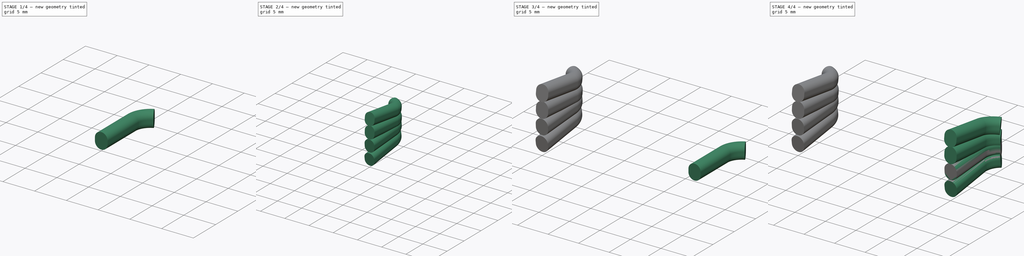
[diagram: build sequence overview — one tinted view per stage of 4, left to right]
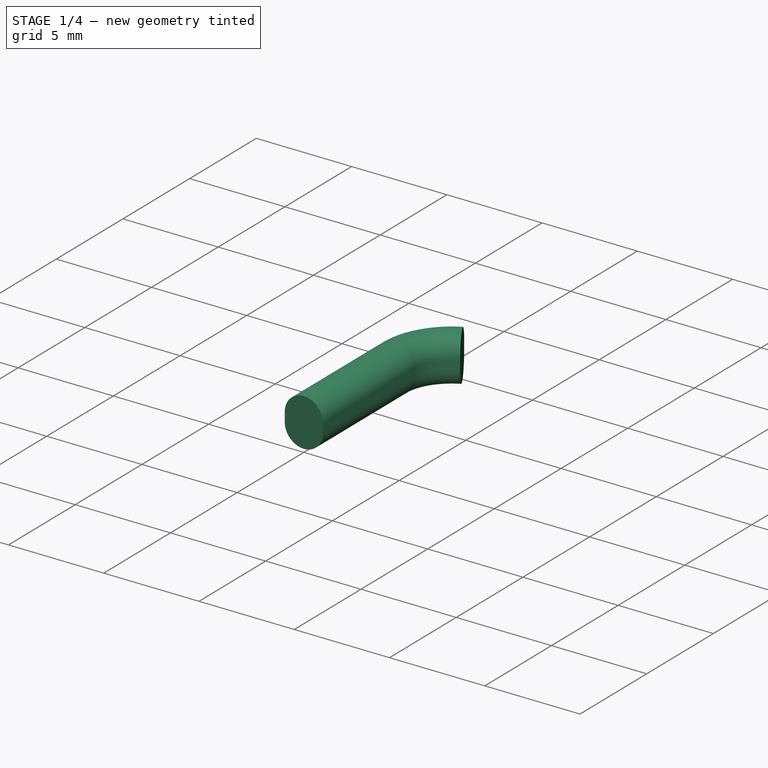
[diagram: stage 1 of 4 — iso view after this stage's code; geometry added in this stage tinted green]
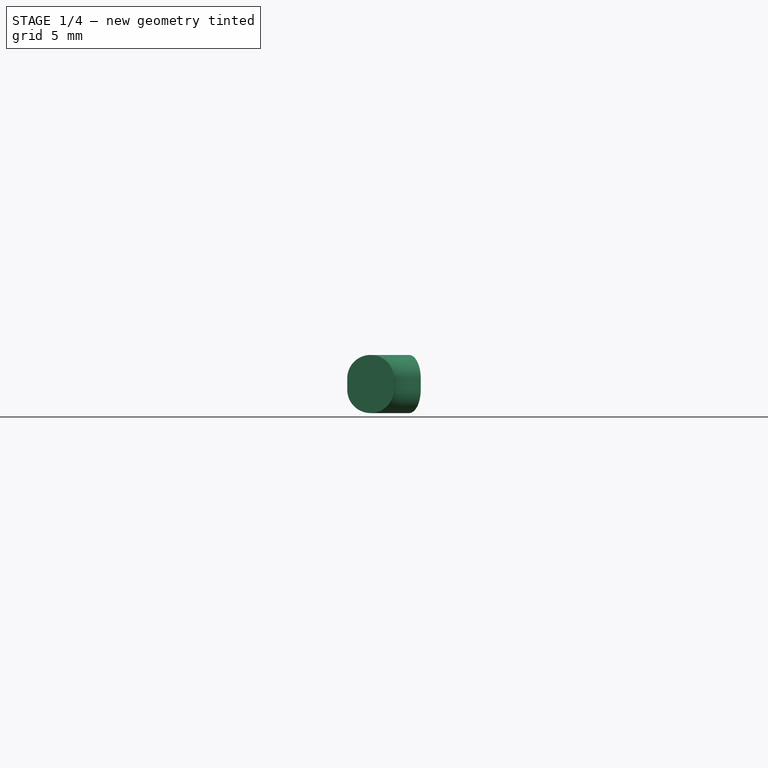
[diagram: stage 1 of 4 — front view after this stage's code; geometry added in this stage tinted green]
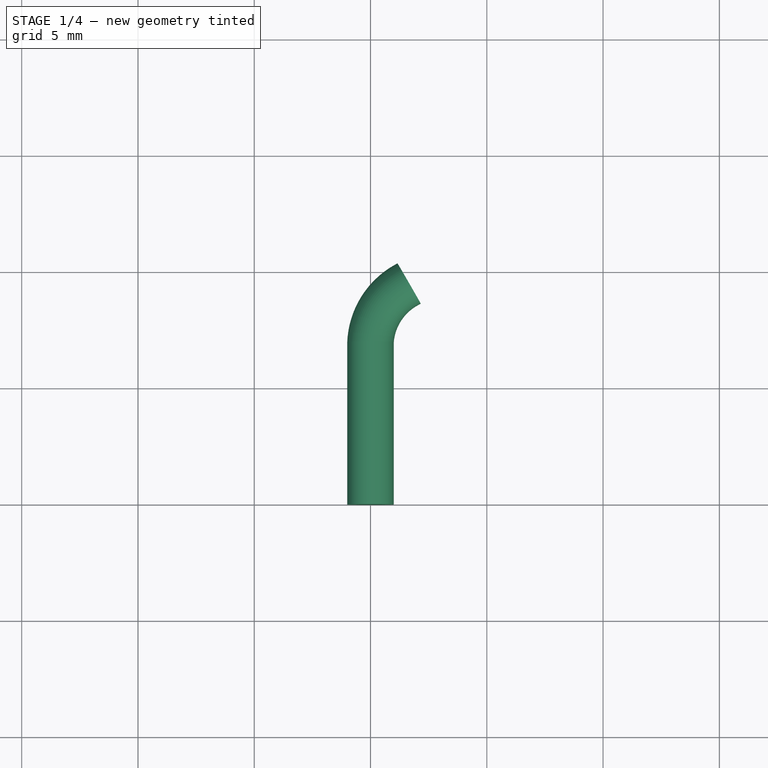
[diagram: stage 1 of 4 — top view after this stage's code; geometry added in this stage tinted green]
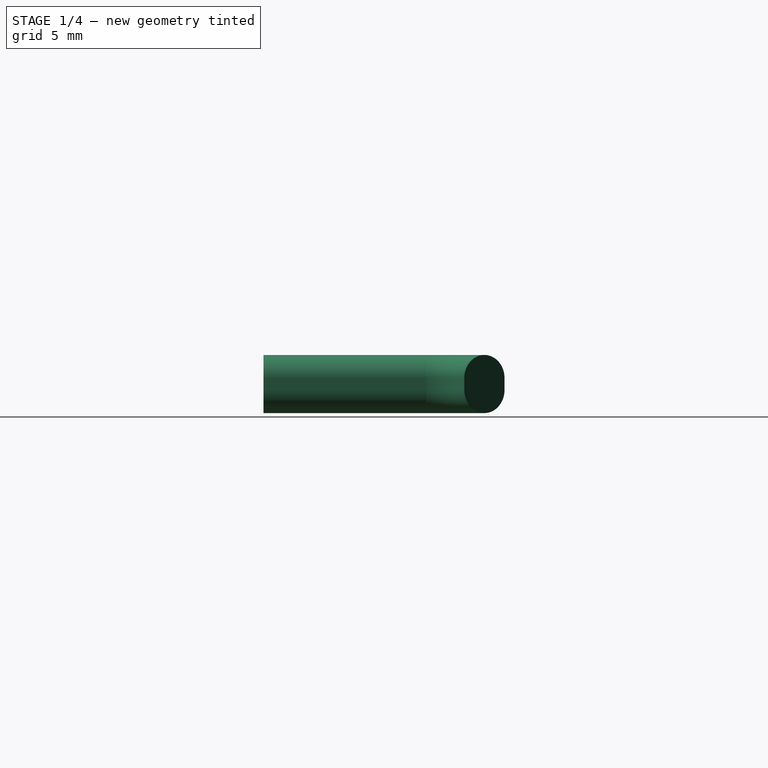
[diagram: stage 1 of 4 — right view after this stage's code; geometry added in this stage tinted green]
FCSTD DOCUMENT  (FreeCAD 0.19R24276 (Git))
Label: pipes
License: All rights reserved
LicenseURL: http://en.wikipedia.org/wiki/All_rights_reserved
objects: Sketcher::SketchObject×16, PartDesign::AdditivePipe×8, PartDesign::Body×8, Part::MultiFuse×2, Spreadsheet::Sheet×1
note: 42 computed .brp shape members not serialized (recipe doc carries the construction recipe); baked Part::Feature solids carry a one-line shape summary decoded from their .brp

FEATURE [PartDesign::Body] Body005
  Group = -> [Sketch008,Sketch010,AdditivePipe005]
  Origin = -> Origin004
  Placement = pos=(0,0,2.5) rot=(-1,0,0;0.069813rad)
  Tip = -> AdditivePipe005
  expr: .Placement.Rotation.Angle = -<<data>>.pipe_angle
FEATURE [Sketcher::SketchObject] Sketch013
  FullyConstrained = true
  Placement = pos=(0,0,0) rot=(1,0,0;1.5708rad)
  sketch-geometry (4):
    g0: ArcOfCircle CenterX=0 CenterY=0 CenterZ=0 NormalX=0 NormalY=0 NormalZ=1 AngleXU=0 Radius=1 StartAngle=-7.15e-13 EndAngle=3.14159
    g1: ArcOfCircle CenterX=5.09e-14 CenterY=-0.5 CenterZ=0 NormalX=0 NormalY=0 NormalZ=1 AngleXU=0 Radius=1 StartAngle=3.14159 EndAngle=6.28319
    g2: LineSegment StartX=-1 StartY=-4.83e-14 StartZ=0 EndX=-1 EndY=-0.5 EndZ=0
    g3: LineSegment StartX=1 StartY=-7.15e-13 StartZ=0 EndX=1 EndY=-0.5 EndZ=0
  constraints (9):
    c: Tangent(g0,g3) = 1.5708
    c: Tangent(g0,g2) = -1.5708
    c: Tangent(g2,g1) = -1.5708
    c: Tangent(g3,g1) = 1.5708
    c: Vertical(g2)
    c: Equal(g0,g1)
    c: Coincident(g0,g-1)
    c: Radius(g0) = 1
    c: DistanceY(g1,g0) = 0.5
FEATURE [PartDesign::AdditivePipe] AdditivePipe006
  AuxilleryCurvelinear = true
  AuxillerySpineTangent = false
  Binormal = (0,0,0)
  Mode = 0
  Placement = pos=(0,0,0) rot=(1,0,0;1.5708rad)
  Profile = -> Sketch013
  Spine = -> Sketch012 [Edge1,Edge2]
  SpineTangent = false
  Transformation = 0
  Transition = 0
FEATURE [PartDesign::Body] Body007
  Group = -> [Sketch012,Sketch013,AdditivePipe006]
  Origin = -> Origin005
  Placement = pos=(0,0,5) rot=(-1,0,0;0.139626rad)
  Tip = -> AdditivePipe006
  expr: .Placement.Rotation.Angle = -<<data>>.pipe_angle * 2
FEATURE [Sketcher::SketchObject] Sketch014
  FullyConstrained = true
  MapMode = 5
  Support = -> [XY_Plane006]
  sketch-geometry (2):
    g0: LineSegment StartX=0 StartY=0 StartZ=0 EndX=5.15e-14 EndY=7 EndZ=0
    g1: ArcOfCircle CenterX=2.99422 CenterY=6.81386 CenterZ=0 NormalX=0 NormalY=0 NormalZ=1 AngleXU=0 Radius=3 StartAngle=2.03231 EndAngle=3.07951
  constraints (7):
    c: Coincident(g0,g-1)
    c: PointOnObject(g0,g-2)
    c: DistanceY(g0,g0) = 7
    c: Radius(g1) = 3
    c: Angle(g1) = 1.0472
    c: Coincident(g0,g1)
    c: DistanceY(g0,g1) = 2.5
FEATURE [Sketcher::SketchObject] Sketch015
  FullyConstrained = true
  Placement = pos=(0,0,0) rot=(1,0,0;1.5708rad)
  sketch-geometry (4):
    g0: ArcOfCircle CenterX=0 CenterY=0 CenterZ=0 NormalX=0 NormalY=0 NormalZ=1 AngleXU=0 Radius=1 StartAngle=-7.15e-13 EndAngle=3.14159
    g1: ArcOfCircle CenterX=5.09e-14 CenterY=-0.5 CenterZ=0 NormalX=0 NormalY=0 NormalZ=1 AngleXU=0 Radius=1 StartAngle=3.14159 EndAngle=6.28319
    g2: LineSegment StartX=-1 StartY=-4.83e-14 StartZ=0 EndX=-1 EndY=-0.5 EndZ=0
    g3: LineSegment StartX=1 StartY=-7.15e-13 StartZ=0 EndX=1 EndY=-0.5 EndZ=0
  constraints (9):
    c: Tangent(g0,g3) = 1.5708
    c: Tangent(g0,g2) = -1.5708
    c: Tangent(g2,g1) = -1.5708
    c: Tangent(g3,g1) = 1.5708
    c: Vertical(g2)
    c: Equal(g0,g1)
    c: Coincident(g0,g-1)
    c: Radius(g0) = 1
    c: DistanceY(g1,g0) = 0.5
FEATURE [PartDesign::AdditivePipe] AdditivePipe007
  AuxilleryCurvelinear = true
  AuxillerySpineTangent = false
  Binormal = (0,0,0)
  Mode = 0
  Placement = pos=(0,0,0) rot=(1,0,0;1.5708rad)
  Profile = -> Sketch015
  Spine = -> Sketch014 [Edge1,Edge2]
  SpineTangent = false
  Transformation = 0
  Transition = 0
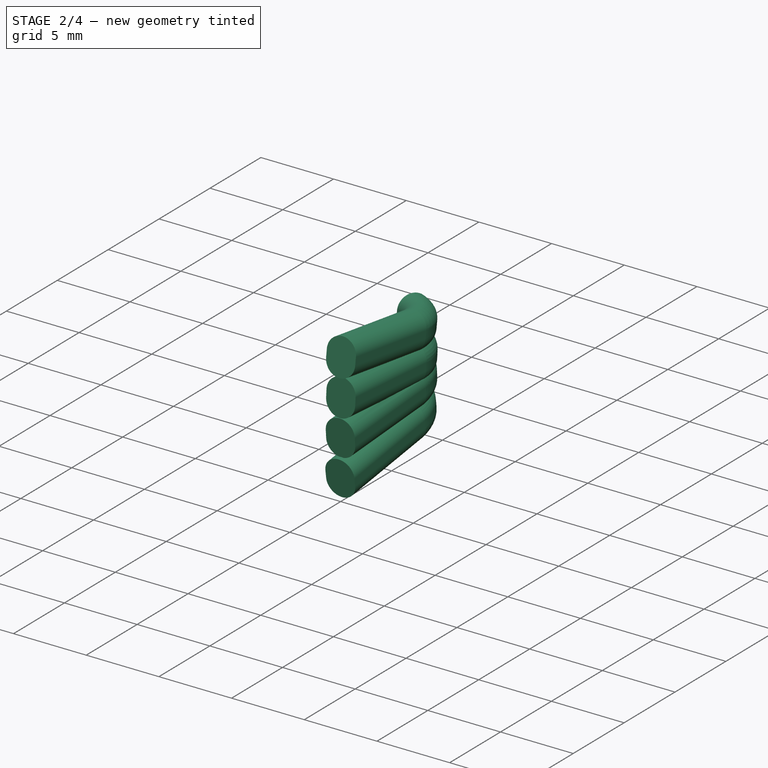
[diagram: stage 2 of 4 — iso view after this stage's code; geometry added in this stage tinted green]
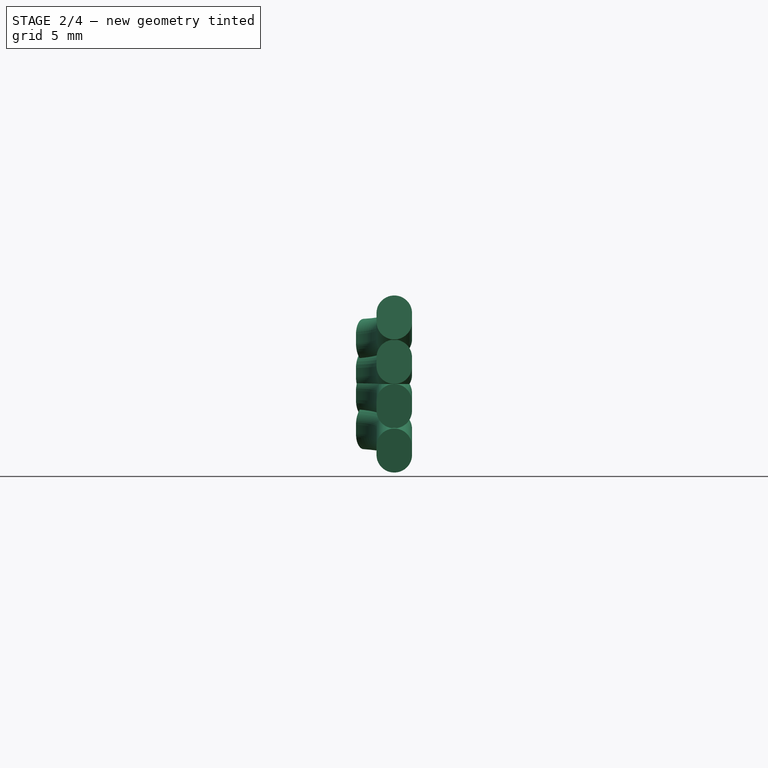
[diagram: stage 2 of 4 — front view after this stage's code; geometry added in this stage tinted green]
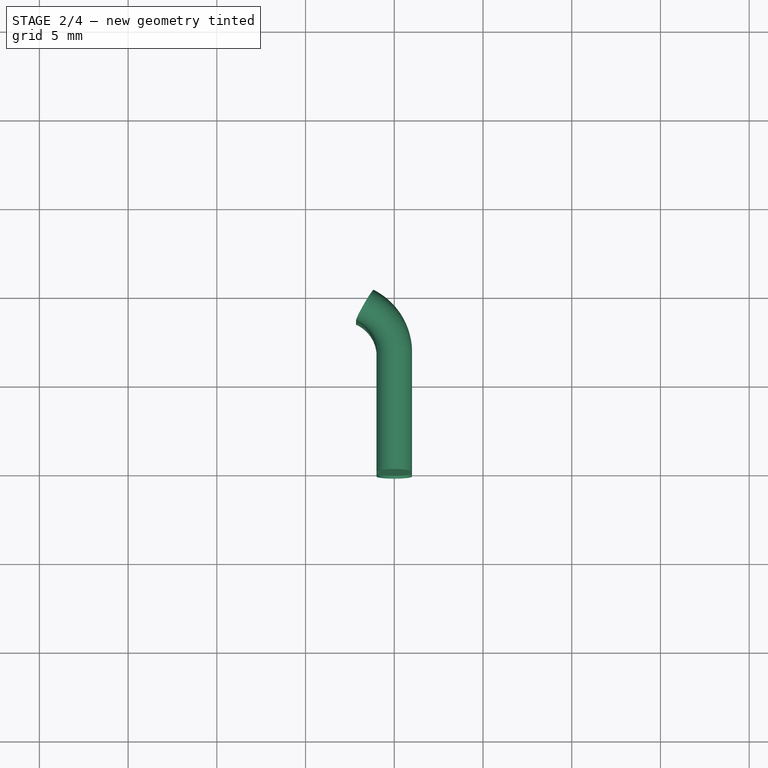
[diagram: stage 2 of 4 — top view after this stage's code; geometry added in this stage tinted green]
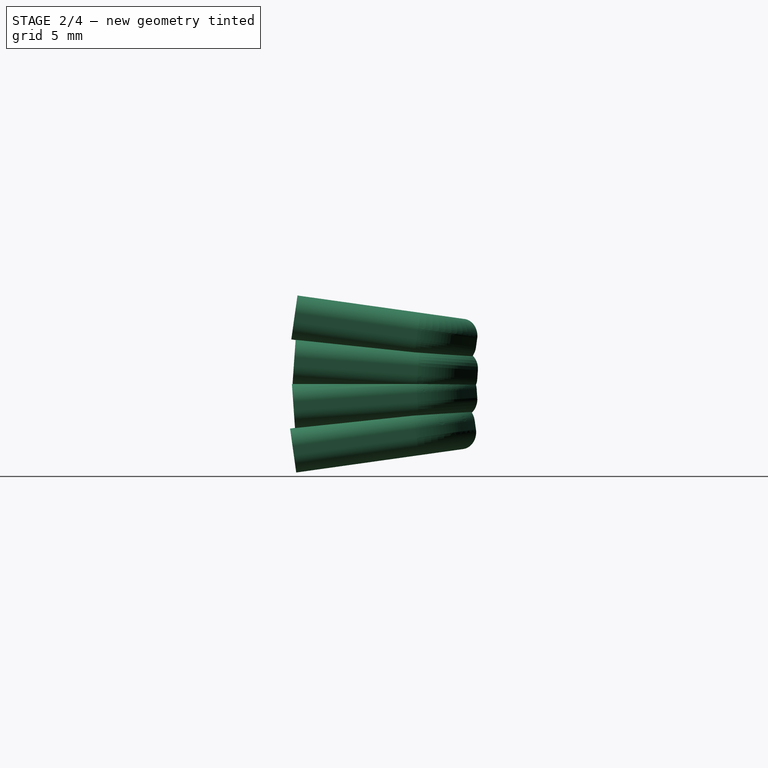
[diagram: stage 2 of 4 — right view after this stage's code; geometry added in this stage tinted green]
FEATURE [Sketcher::SketchObject] Sketch008
  FullyConstrained = true
  MapMode = 5
  Support = -> [XY_Plane007]
  sketch-geometry (2):
    g0: LineSegment StartX=0 StartY=0 StartZ=0 EndX=5.2e-14 EndY=7 EndZ=0
    g1: ArcOfCircle CenterX=2.99422 CenterY=6.81386 CenterZ=0 NormalX=0 NormalY=0 NormalZ=1 AngleXU=0 Radius=3 StartAngle=2.03231 EndAngle=3.07951
  constraints (7):
    c: Coincident(g0,g-1)
    c: PointOnObject(g0,g-2)
    c: DistanceY(g0,g0) = 7
    c: Radius(g1) = 3
    c: Angle(g1) = 1.0472
    c: Coincident(g0,g1)
    c: DistanceY(g0,g1) = 2.5
FEATURE [Sketcher::SketchObject] Sketch009
  FullyConstrained = true
  MapMode = 5
  Support = -> [XY_Plane004]
  sketch-geometry (2):
    g0: LineSegment StartX=0 StartY=0 StartZ=0 EndX=1.6e-14 EndY=7 EndZ=0
    g1: ArcOfCircle CenterX=2.99422 CenterY=6.81386 CenterZ=0 NormalX=0 NormalY=0 NormalZ=1 AngleXU=0 Radius=3 StartAngle=2.03231 EndAngle=3.07951
  constraints (7):
    c: Coincident(g0,g-1)
    c: PointOnObject(g0,g-2)
    c: DistanceY(g0,g0) = 7
    c: Radius(g1) = 3
    c: Angle(g1) = 1.0472
    c: Coincident(g0,g1)
    c: DistanceY(g0,g1) = 2.5
FEATURE [Sketcher::SketchObject] Sketch010
  FullyConstrained = true
  Placement = pos=(0,0,0) rot=(1,0,0;1.5708rad)
  sketch-geometry (4):
    g0: ArcOfCircle CenterX=0 CenterY=0 CenterZ=0 NormalX=0 NormalY=0 NormalZ=1 AngleXU=0 Radius=1 StartAngle=-7.15e-13 EndAngle=3.14159
    g1: ArcOfCircle CenterX=5.09e-14 CenterY=-0.5 CenterZ=0 NormalX=0 NormalY=0 NormalZ=1 AngleXU=0 Radius=1 StartAngle=3.14159 EndAngle=6.28319
    g2: LineSegment StartX=-1 StartY=-4.83e-14 StartZ=0 EndX=-1 EndY=-0.5 EndZ=0
    g3: LineSegment StartX=1 StartY=-7.15e-13 StartZ=0 EndX=1 EndY=-0.5 EndZ=0
  constraints (9):
    c: Tangent(g0,g3) = 1.5708
    c: Tangent(g0,g2) = -1.5708
    c: Tangent(g2,g1) = -1.5708
    c: Tangent(g3,g1) = 1.5708
    c: Vertical(g2)
    c: Equal(g0,g1)
    c: Coincident(g0,g-1)
    c: Radius(g0) = 1
    c: DistanceY(g1,g0) = 0.5
FEATURE [Sketcher::SketchObject] Sketch011
  FullyConstrained = true
  Placement = pos=(0,0,0) rot=(1,0,0;1.5708rad)
  sketch-geometry (4):
    g0: ArcOfCircle CenterX=0 CenterY=0 CenterZ=0 NormalX=0 NormalY=0 NormalZ=1 AngleXU=0 Radius=1 StartAngle=0 EndAngle=3.14159
    g1: ArcOfCircle CenterX=0 CenterY=-0.5 CenterZ=0 NormalX=0 NormalY=0 NormalZ=1 AngleXU=0 Radius=1 StartAngle=3.14159 EndAngle=6.28319
    g2: LineSegment StartX=-1 StartY=1e-16 StartZ=0 EndX=-1 EndY=-0.5 EndZ=0
    g3: LineSegment StartX=1 StartY=0 StartZ=0 EndX=1 EndY=-0.5 EndZ=0
  constraints (9):
    c: Tangent(g0,g3) = 1.5708
    c: Tangent(g0,g2) = -1.5708
    c: Tangent(g2,g1) = -1.5708
    c: Tangent(g3,g1) = 1.5708
    c: Vertical(g2)
    c: Equal(g0,g1)
    c: Coincident(g0,g-1)
    c: Radius(g0) = 1
    c: DistanceY(g1,g0) = 0.5
FEATURE [PartDesign::AdditivePipe] AdditivePipe004
  AuxilleryCurvelinear = true
  AuxillerySpineTangent = false
  Binormal = (0,0,0)
  Mode = 0
  Placement = pos=(0,0,0) rot=(1,0,0;1.5708rad)
  Profile = -> Sketch011
  Spine = -> Sketch009 [Edge1,Edge2]
  SpineTangent = false
  Transformation = 0
  Transition = 0
FEATURE [PartDesign::Body] Body004
  Group = -> [Sketch009,Sketch011,AdditivePipe004]
  Origin = -> Origin007
  Placement = pos=(0,0,0) rot=(1,0,0;0.069813rad)
  Tip = -> AdditivePipe004
  expr: .Placement.Rotation.Angle = <<data>>.pipe_angle
FEATURE [Sketcher::SketchObject] Sketch012
  FullyConstrained = true
  MapMode = 5
  Support = -> [XY_Plane005]
  sketch-geometry (2):
    g0: LineSegment StartX=0 StartY=0 StartZ=0 EndX=0 EndY=7 EndZ=0
    g1: ArcOfCircle CenterX=2.99422 CenterY=6.81386 CenterZ=0 NormalX=0 NormalY=0 NormalZ=1 AngleXU=0 Radius=3 StartAngle=2.03231 EndAngle=3.07951
  constraints (7):
    c: Coincident(g0,g-1)
    c: PointOnObject(g0,g-2)
    c: DistanceY(g0,g0) = 7
    c: Radius(g1) = 3
    c: Angle(g1) = 1.0472
    c: Coincident(g0,g1)
    c: DistanceY(g0,g1) = 2.5
FEATURE [PartDesign::AdditivePipe] AdditivePipe005
  AuxilleryCurvelinear = true
  AuxillerySpineTangent = false
  Binormal = (0,0,0)
  Mode = 0
  Placement = pos=(0,0,0) rot=(1,0,0;1.5708rad)
  Profile = -> Sketch010
  Spine = -> Sketch008 [Edge1,Edge2]
  SpineTangent = false
  Transformation = 0
  Transition = 0
FEATURE [PartDesign::Body] Body006
  Group = -> [Sketch014,Sketch015,AdditivePipe007]
  Origin = -> Origin006
  Placement = pos=(0,0,-2.5) rot=(1,0,0;0.139626rad)
  Tip = -> AdditivePipe007
  expr: .Placement.Rotation.Angle = <<data>>.pipe_angle * 2
FEATURE [Part::MultiFuse] Fusion001
  Placement = pos=(-25,0,2) rot=(0,1,0;3.14159rad)
  Shapes = -> [Body004,Body005,Body007,Body006]
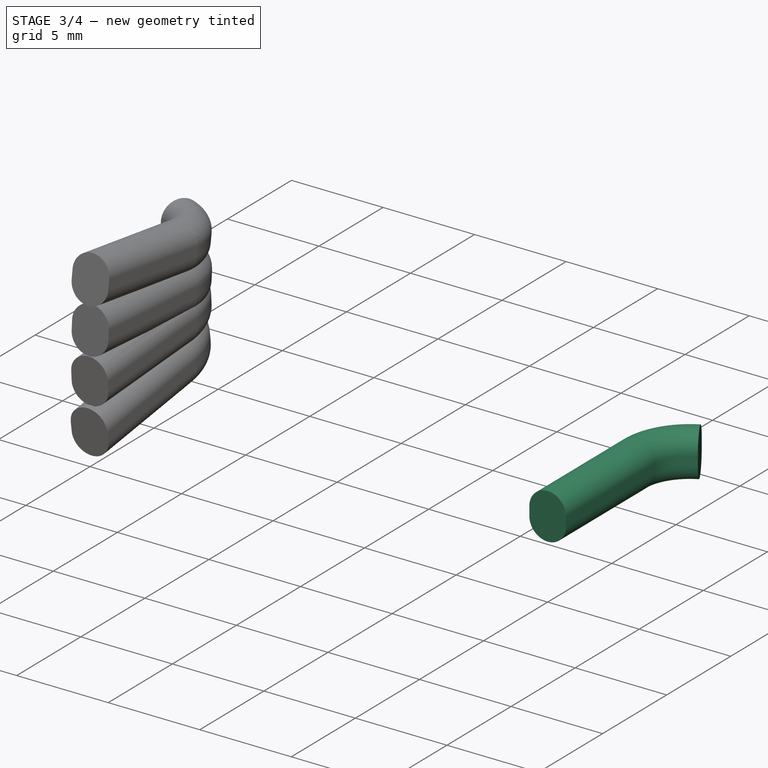
[diagram: stage 3 of 4 — iso view after this stage's code; geometry added in this stage tinted green]
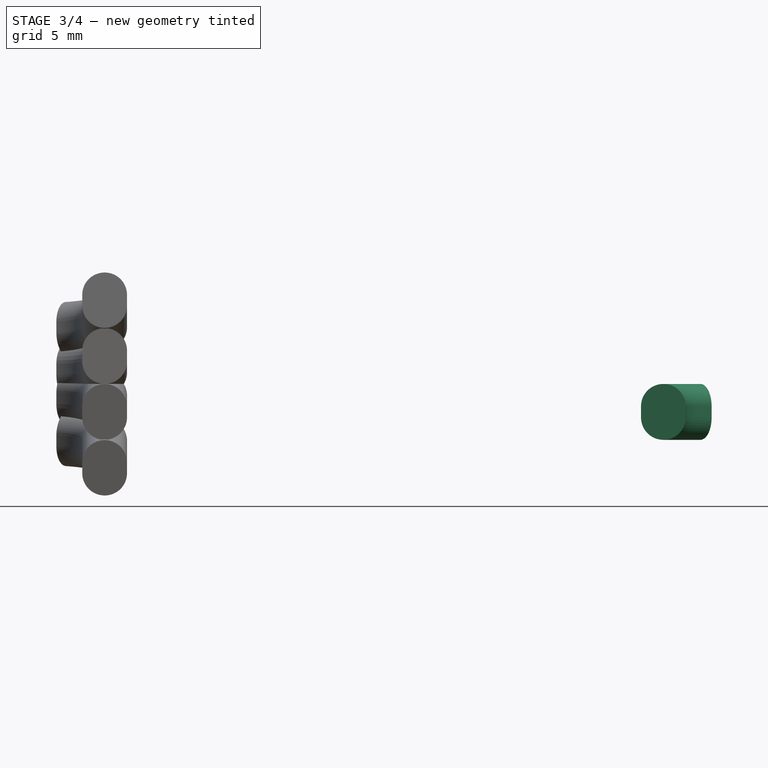
[diagram: stage 3 of 4 — front view after this stage's code; geometry added in this stage tinted green]
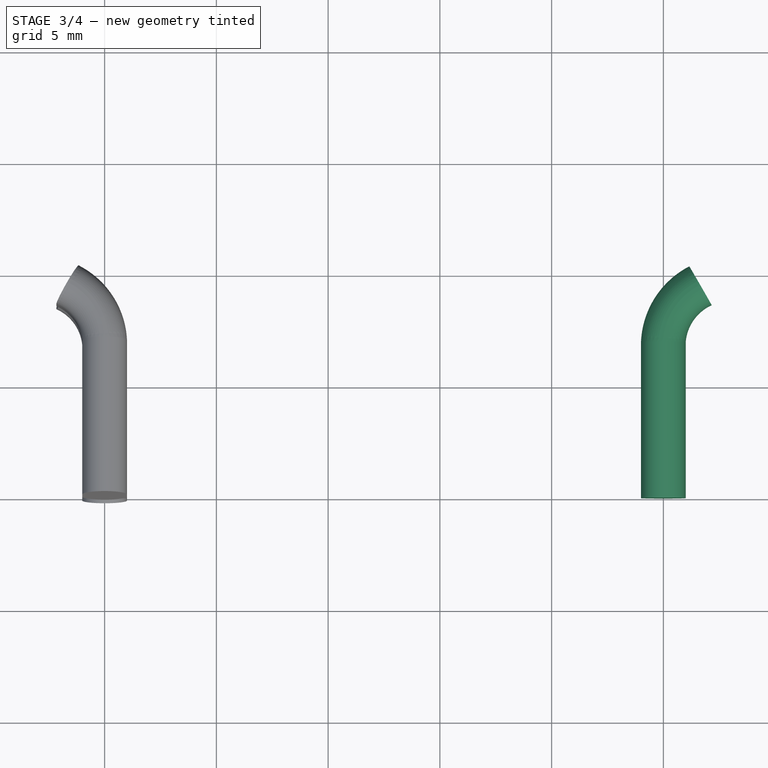
[diagram: stage 3 of 4 — top view after this stage's code; geometry added in this stage tinted green]
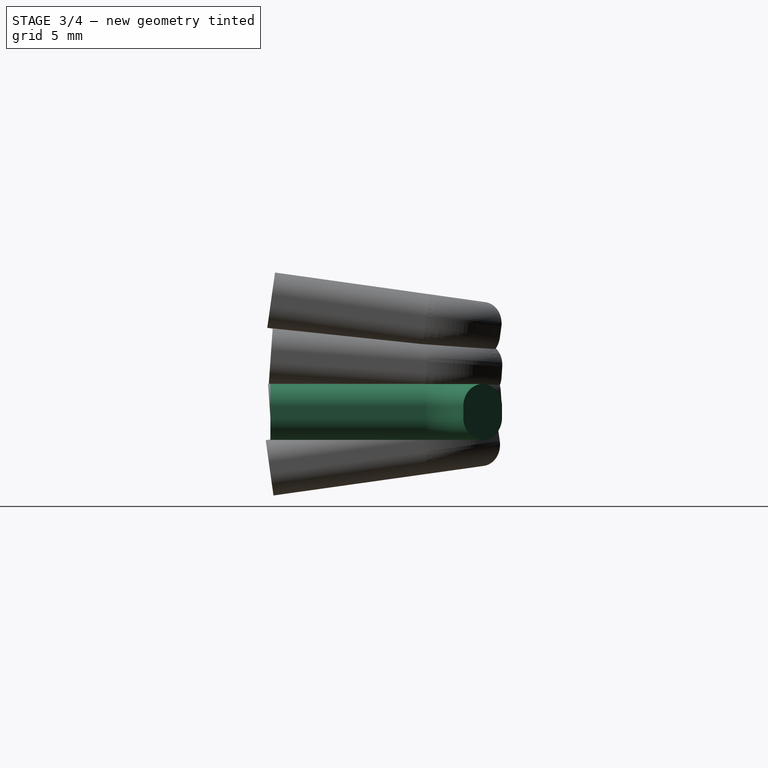
[diagram: stage 3 of 4 — right view after this stage's code; geometry added in this stage tinted green]
FEATURE [PartDesign::Body] Body
  Group = -> [Sketch,Sketch001,AdditivePipe]
  Origin = -> Origin
  Placement = pos=(0,0,0) rot=(1,0,0;0.069813rad)
  Tip = -> AdditivePipe
  expr: .Placement.Rotation.Angle = <<data>>.pipe_angle
FEATURE [Sketcher::SketchObject] Sketch002
  FullyConstrained = true
  MapMode = 5
  Support = -> [XY_Plane001]
  sketch-geometry (2):
    g0: LineSegment StartX=0 StartY=0 StartZ=0 EndX=5.2e-14 EndY=7 EndZ=0
    g1: ArcOfCircle CenterX=2.99422 CenterY=6.81386 CenterZ=0 NormalX=0 NormalY=0 NormalZ=1 AngleXU=0 Radius=3 StartAngle=2.03231 EndAngle=3.07951
  constraints (7):
    c: Coincident(g0,g-1)
    c: PointOnObject(g0,g-2)
    c: DistanceY(g0,g0) = 7
    c: Radius(g1) = 3
    c: Angle(g1) = 1.0472
    c: Coincident(g0,g1)
    c: DistanceY(g0,g1) = 2.5
FEATURE [Sketcher::SketchObject] Sketch003
  FullyConstrained = true
  Placement = pos=(0,0,0) rot=(1,0,0;1.5708rad)
  sketch-geometry (4):
    g0: ArcOfCircle CenterX=0 CenterY=0 CenterZ=0 NormalX=0 NormalY=0 NormalZ=1 AngleXU=0 Radius=1 StartAngle=-7.15e-13 EndAngle=3.14159
    g1: ArcOfCircle CenterX=5.09e-14 CenterY=-0.5 CenterZ=0 NormalX=0 NormalY=0 NormalZ=1 AngleXU=0 Radius=1 StartAngle=3.14159 EndAngle=6.28319
    g2: LineSegment StartX=-1 StartY=-4.83e-14 StartZ=0 EndX=-1 EndY=-0.5 EndZ=0
    g3: LineSegment StartX=1 StartY=-7.15e-13 StartZ=0 EndX=1 EndY=-0.5 EndZ=0
  constraints (9):
    c: Tangent(g0,g3) = 1.5708
    c: Tangent(g0,g2) = -1.5708
    c: Tangent(g2,g1) = -1.5708
    c: Tangent(g3,g1) = 1.5708
    c: Vertical(g2)
    c: Equal(g0,g1)
    c: Coincident(g0,g-1)
    c: Radius(g0) = 1
    c: DistanceY(g1,g0) = 0.5
FEATURE [PartDesign::AdditivePipe] AdditivePipe001
  AuxilleryCurvelinear = true
  AuxillerySpineTangent = false
  Binormal = (0,0,0)
  Mode = 0
  Placement = pos=(0,0,0) rot=(1,0,0;1.5708rad)
  Profile = -> Sketch003
  Spine = -> Sketch002 [Edge1,Edge2]
  SpineTangent = false
  Transformation = 0
  Transition = 0
FEATURE [PartDesign::Body] Body001
  Group = -> [Sketch002,Sketch003,AdditivePipe001]
  Origin = -> Origin001
  Placement = pos=(0,0,2.5) rot=(1,0,0;-0.069813rad)
  Tip = -> AdditivePipe001
  expr: .Placement.Rotation.Angle = -<<data>>.pipe_angle
FEATURE [Sketcher::SketchObject] Sketch004
  FullyConstrained = true
  MapMode = 5
  Support = -> [XY_Plane002]
  sketch-geometry (2):
    g0: LineSegment StartX=0 StartY=0 StartZ=0 EndX=0 EndY=7 EndZ=0
    g1: ArcOfCircle CenterX=2.99422 CenterY=6.81386 CenterZ=0 NormalX=0 NormalY=0 NormalZ=1 AngleXU=0 Radius=3 StartAngle=2.03231 EndAngle=3.07951
  constraints (7):
    c: Coincident(g0,g-1)
    c: PointOnObject(g0,g-2)
    c: DistanceY(g0,g0) = 7
    c: Radius(g1) = 3
    c: Angle(g1) = 1.0472
    c: Coincident(g0,g1)
    c: DistanceY(g0,g1) = 2.5
FEATURE [Sketcher::SketchObject] Sketch005
  FullyConstrained = true
  Placement = pos=(0,0,0) rot=(1,0,0;1.5708rad)
  sketch-geometry (4):
    g0: ArcOfCircle CenterX=0 CenterY=0 CenterZ=0 NormalX=0 NormalY=0 NormalZ=1 AngleXU=0 Radius=1 StartAngle=-7.15e-13 EndAngle=3.14159
    g1: ArcOfCircle CenterX=5.09e-14 CenterY=-0.5 CenterZ=0 NormalX=0 NormalY=0 NormalZ=1 AngleXU=0 Radius=1 StartAngle=3.14159 EndAngle=6.28319
    g2: LineSegment StartX=-1 StartY=-4.83e-14 StartZ=0 EndX=-1 EndY=-0.5 EndZ=0
    g3: LineSegment StartX=1 StartY=-7.15e-13 StartZ=0 EndX=1 EndY=-0.5 EndZ=0
  constraints (9):
    c: Tangent(g0,g3) = 1.5708
    c: Tangent(g0,g2) = -1.5708
    c: Tangent(g2,g1) = -1.5708
    c: Tangent(g3,g1) = 1.5708
    c: Vertical(g2)
    c: Equal(g0,g1)
    c: Coincident(g0,g-1)
    c: Radius(g0) = 1
    c: DistanceY(g1,g0) = 0.5
FEATURE [PartDesign::AdditivePipe] AdditivePipe002
  AuxilleryCurvelinear = true
  AuxillerySpineTangent = false
  Binormal = (0,0,0)
  Mode = 0
  Placement = pos=(0,0,0) rot=(1,0,0;1.5708rad)
  Profile = -> Sketch005
  Spine = -> Sketch004 [Edge1,Edge2]
  SpineTangent = false
  Transformation = 0
  Transition = 0
FEATURE [PartDesign::Body] Body002
  Group = -> [Sketch004,Sketch005,AdditivePipe002]
  Origin = -> Origin002
  Placement = pos=(0,0,5) rot=(1,0,0;-0.139626rad)
  Tip = -> AdditivePipe002
  expr: .Placement.Rotation.Angle = -<<data>>.pipe_angle * 2
FEATURE [Sketcher::SketchObject] Sketch006
  FullyConstrained = true
  MapMode = 5
  Support = -> [XY_Plane003]
  sketch-geometry (2):
    g0: LineSegment StartX=0 StartY=0 StartZ=0 EndX=5.15e-14 EndY=7 EndZ=0
    g1: ArcOfCircle CenterX=2.99422 CenterY=6.81386 CenterZ=0 NormalX=0 NormalY=0 NormalZ=1 AngleXU=0 Radius=3 StartAngle=2.03231 EndAngle=3.07951
  constraints (7):
    c: Coincident(g0,g-1)
    c: PointOnObject(g0,g-2)
    c: DistanceY(g0,g0) = 7
    c: Radius(g1) = 3
    c: Angle(g1) = 1.0472
    c: Coincident(g0,g1)
    c: DistanceY(g0,g1) = 2.5
FEATURE [Sketcher::SketchObject] Sketch007
  FullyConstrained = true
  Placement = pos=(0,0,0) rot=(1,0,0;1.5708rad)
  sketch-geometry (4):
    g0: ArcOfCircle CenterX=0 CenterY=0 CenterZ=0 NormalX=0 NormalY=0 NormalZ=1 AngleXU=0 Radius=1 StartAngle=-7.15e-13 EndAngle=3.14159
    g1: ArcOfCircle CenterX=5.09e-14 CenterY=-0.5 CenterZ=0 NormalX=0 NormalY=0 NormalZ=1 AngleXU=0 Radius=1 StartAngle=3.14159 EndAngle=6.28319
    g2: LineSegment StartX=-1 StartY=-4.83e-14 StartZ=0 EndX=-1 EndY=-0.5 EndZ=0
    g3: LineSegment StartX=1 StartY=-7.15e-13 StartZ=0 EndX=1 EndY=-0.5 EndZ=0
  constraints (9):
    c: Tangent(g0,g3) = 1.5708
    c: Tangent(g0,g2) = -1.5708
    c: Tangent(g2,g1) = -1.5708
    c: Tangent(g3,g1) = 1.5708
    c: Vertical(g2)
    c: Equal(g0,g1)
    c: Coincident(g0,g-1)
    c: Radius(g0) = 1
    c: DistanceY(g1,g0) = 0.5
FEATURE [PartDesign::AdditivePipe] AdditivePipe003
  AuxilleryCurvelinear = true
  AuxillerySpineTangent = false
  Binormal = (0,0,0)
  Mode = 0
  Placement = pos=(0,0,0) rot=(1,0,0;1.5708rad)
  Profile = -> Sketch007
  Spine = -> Sketch006 [Edge1,Edge2]
  SpineTangent = false
  Transformation = 0
  Transition = 0
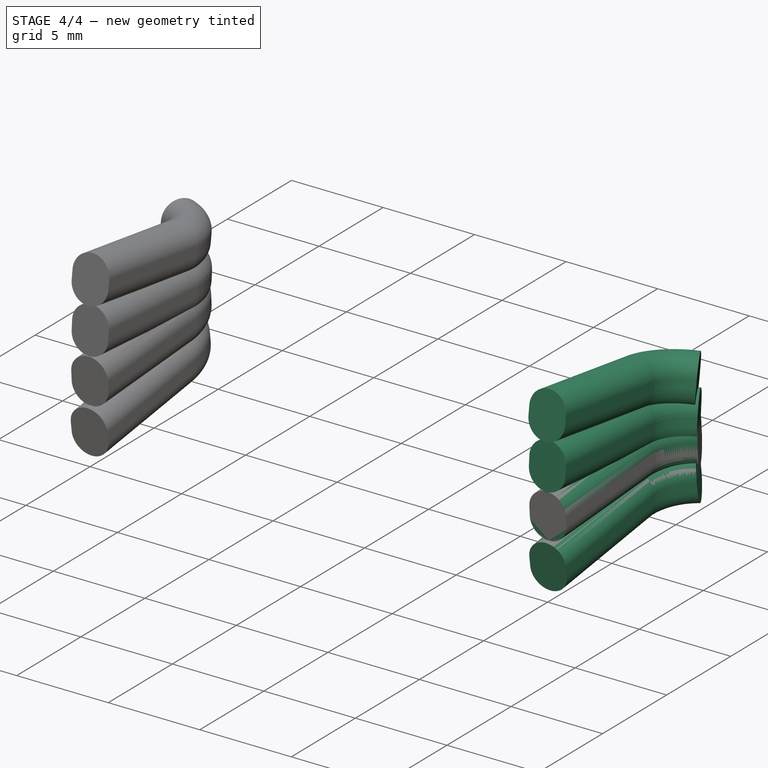
[diagram: stage 4 of 4 — iso view after this stage's code; geometry added in this stage tinted green]
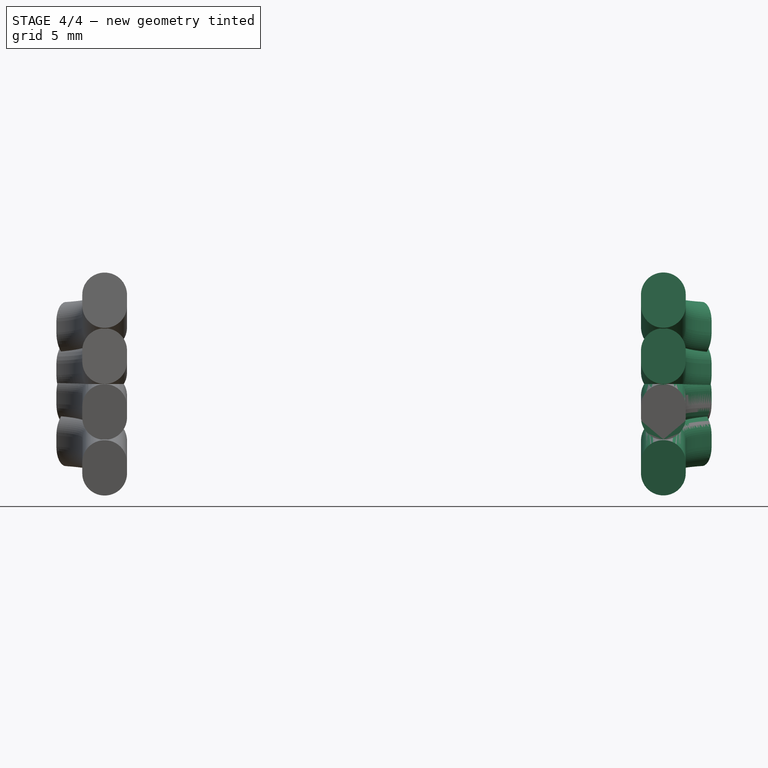
[diagram: stage 4 of 4 — front view after this stage's code; geometry added in this stage tinted green]
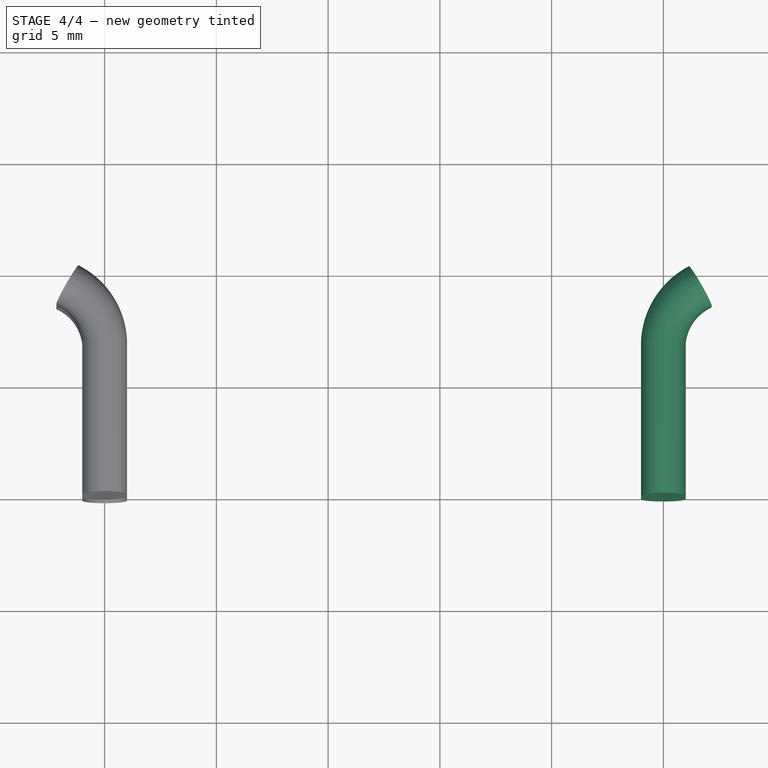
[diagram: stage 4 of 4 — top view after this stage's code; geometry added in this stage tinted green]
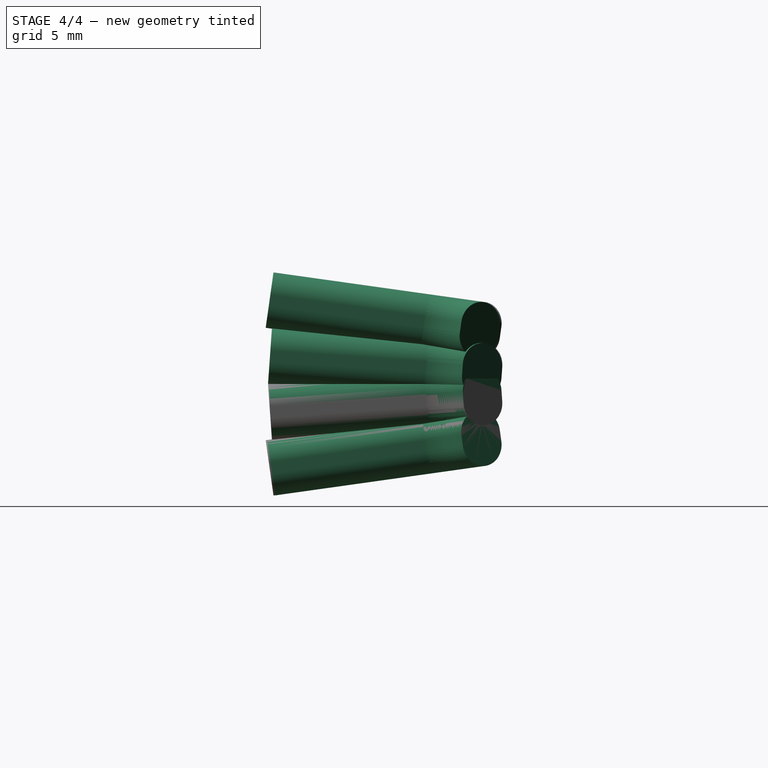
[diagram: stage 4 of 4 — right view after this stage's code; geometry added in this stage tinted green]
FEATURE [Sketcher::SketchObject] Sketch
  FullyConstrained = true
  MapMode = 5
  Support = -> [XY_Plane]
  sketch-geometry (2):
    g0: LineSegment StartX=0 StartY=0 StartZ=0 EndX=1.6e-14 EndY=7 EndZ=0
    g1: ArcOfCircle CenterX=2.99422 CenterY=6.81386 CenterZ=0 NormalX=0 NormalY=0 NormalZ=1 AngleXU=0 Radius=3 StartAngle=2.03231 EndAngle=3.07951
  constraints (7):
    c: Coincident(g0,g-1)
    c: PointOnObject(g0,g-2)
    c: DistanceY(g0,g0) = 7
    c: Radius(g1) = 3
    c: Angle(g1) = 1.0472
    c: Coincident(g0,g1)
    c: DistanceY(g0,g1) = 2.5
FEATURE [Sketcher::SketchObject] Sketch001
  FullyConstrained = true
  Placement = pos=(0,0,0) rot=(1,0,0;1.5708rad)
  sketch-geometry (4):
    g0: ArcOfCircle CenterX=0 CenterY=0 CenterZ=0 NormalX=0 NormalY=0 NormalZ=1 AngleXU=0 Radius=1 StartAngle=0 EndAngle=3.14159
    g1: ArcOfCircle CenterX=0 CenterY=-0.5 CenterZ=0 NormalX=0 NormalY=0 NormalZ=1 AngleXU=0 Radius=1 StartAngle=3.14159 EndAngle=6.28319
    g2: LineSegment StartX=-1 StartY=1e-16 StartZ=0 EndX=-1 EndY=-0.5 EndZ=0
    g3: LineSegment StartX=1 StartY=0 StartZ=0 EndX=1 EndY=-0.5 EndZ=0
  constraints (9):
    c: Tangent(g0,g3) = 1.5708
    c: Tangent(g0,g2) = -1.5708
    c: Tangent(g2,g1) = -1.5708
    c: Tangent(g3,g1) = 1.5708
    c: Vertical(g2)
    c: Equal(g0,g1)
    c: Coincident(g0,g-1)
    c: Radius(g0) = 1
    c: DistanceY(g1,g0) = 0.5
FEATURE [PartDesign::AdditivePipe] AdditivePipe
  AuxilleryCurvelinear = true
  AuxillerySpineTangent = false
  Binormal = (0,0,0)
  Mode = 0
  Placement = pos=(0,0,0) rot=(1,0,0;1.5708rad)
  Profile = -> Sketch001
  Spine = -> Sketch [Edge1,Edge2]
  SpineTangent = false
  Transformation = 0
  Transition = 0
FEATURE [PartDesign::Body] Body003
  Group = -> [Sketch006,Sketch007,AdditivePipe003]
  Origin = -> Origin003
  Placement = pos=(0,0,-2.5) rot=(1,0,0;0.139626rad)
  Tip = -> AdditivePipe003
  expr: .Placement.Rotation.Angle = <<data>>.pipe_angle * 2
FEATURE [Spreadsheet::Sheet] Spreadsheet  label="data"
  cells = A3=pipe_angle; B3(pipe_angle)==4deg
FEATURE [Part::MultiFuse] Fusion
  Shapes = -> [Body,Body001,Body002,Body003]
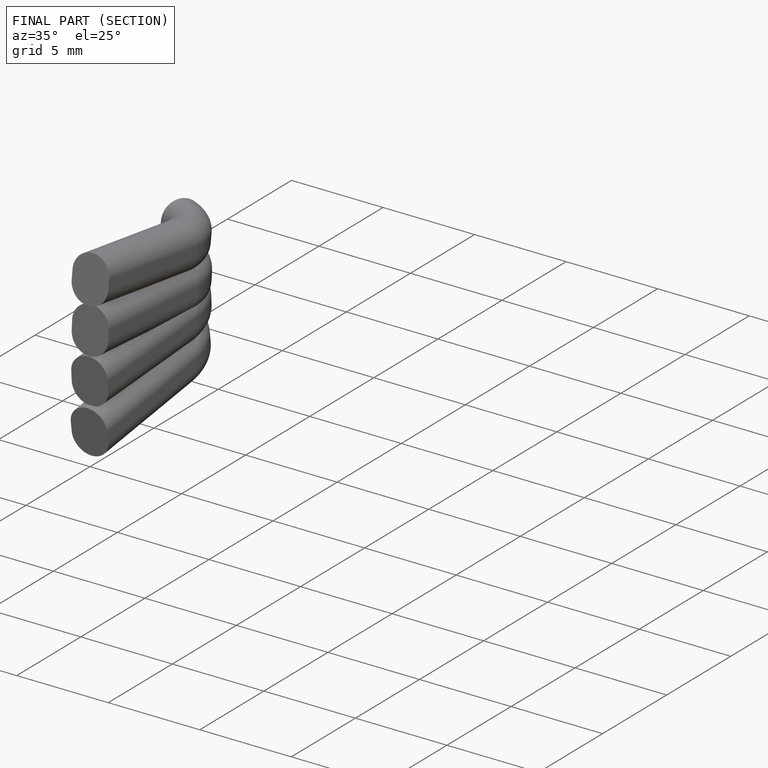
[diagram: finished part — half-section view (interior)]
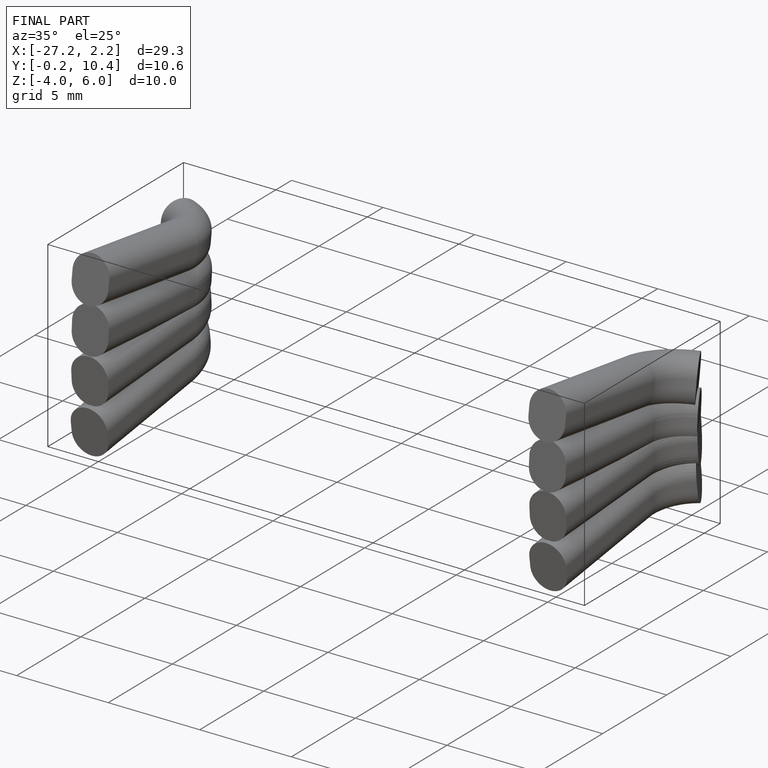
[diagram: finished part — iso view with bounding-box wireframe]
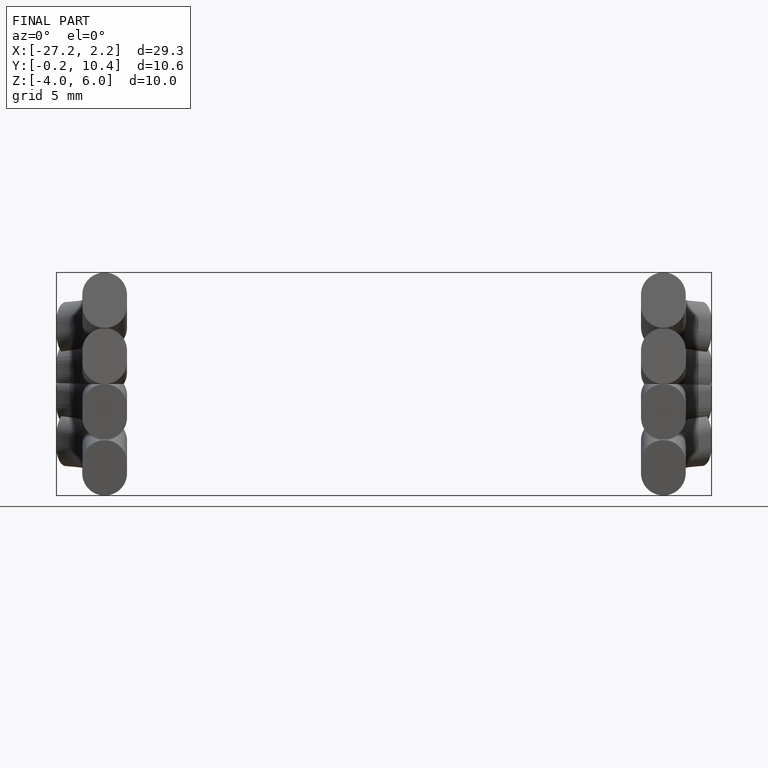
[diagram: finished part — front view with bounding-box wireframe]
